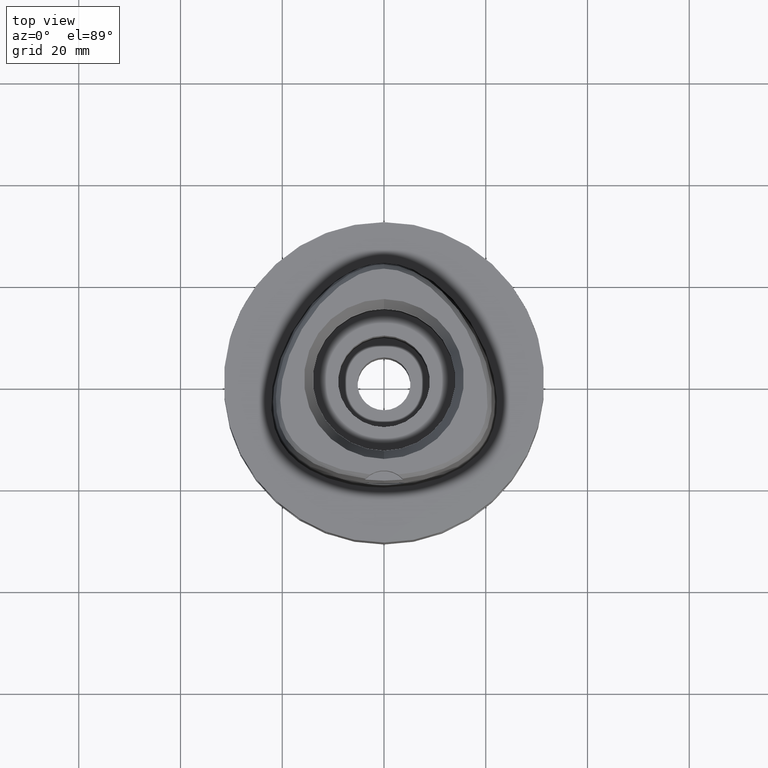
[diagram: clean part render]
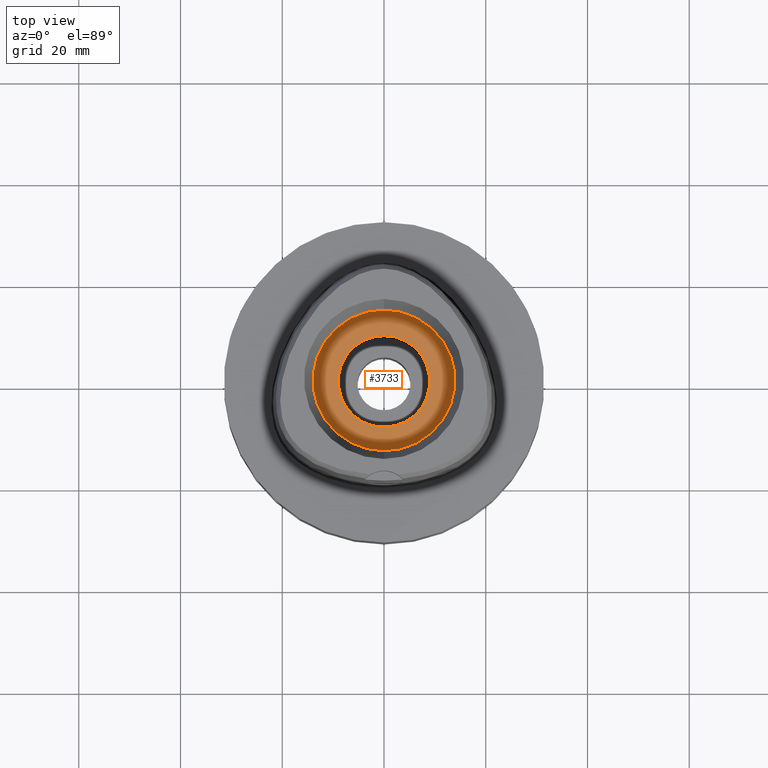
[diagram: same view with one face highlighted and labeled with its STEP entity id]
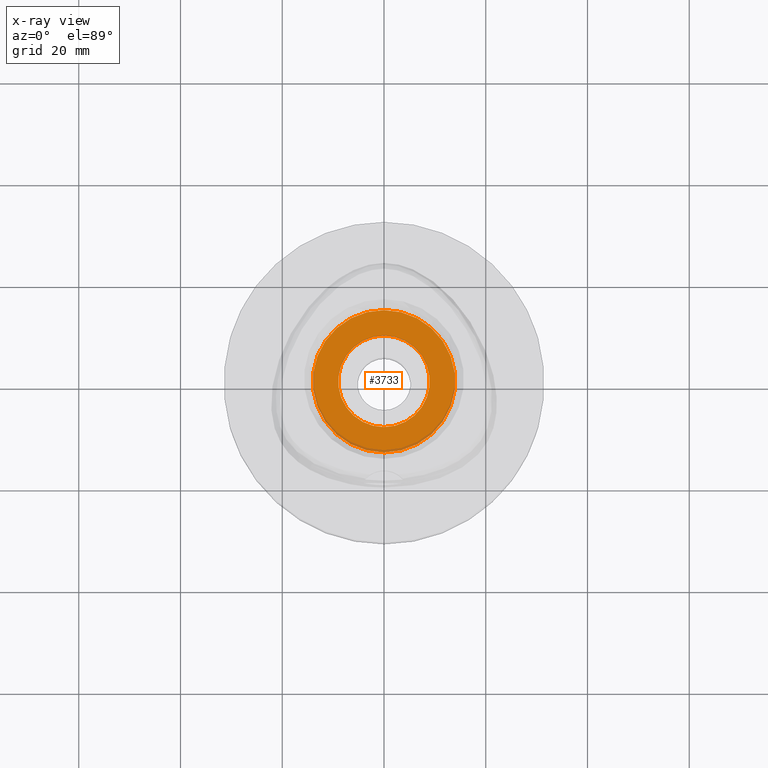
[diagram: x-ray of the same camera — body ghosted, the highlighted face saturated]
A machine part, top view. The second image highlights one B-rep face of the part: STEP entity #3733.
The next image is the same camera in x-ray: the body ghosted, the highlighted face saturated — about 3% of this face is hidden behind the body in this view.
In plain terms, the highlighted planar face has unit normal (0, 0, -1).
Its self-contained STEP definition (entity closure, byte-faithful):
#93 = DIRECTION ( 'NONE',  ( 0.0000000000000000000, -1.000000000000000000, 0.0000000000000000000 ) ) ;
#352 = EDGE_LOOP ( 'NONE', ( #1647, #4288 ) ) ;
#410 = FACE_OUTER_BOUND ( 'NONE', #352, .T. ) ;
#517 = CARTESIAN_POINT ( 'NONE',  ( 0.0000000000000000000, -14.00000000000000000, 11.00000000000000000 ) ) ;
#562 = CIRCLE ( 'NONE', #1677, 9.000000000000000000 ) ;
#617 = CARTESIAN_POINT ( 'NONE',  ( 0.0000000000000000000, 0.0000000000000000000, 11.00000000000000000 ) ) ;
#679 = EDGE_CURVE ( 'NONE', #2454, #3894, #562, .T. ) ;
#709 = DIRECTION ( 'NONE',  ( 0.0000000000000000000, 1.000000000000000000, 0.0000000000000000000 ) ) ;
#813 = CIRCLE ( 'NONE', #1999, 14.00000000000000000 ) ;
#927 = ORIENTED_EDGE ( 'NONE', *, *, #1438, .F. ) ;
#951 = CARTESIAN_POINT ( 'NONE',  ( 0.0000000000000000000, 0.0000000000000000000, 11.00000000000000000 ) ) ;
#1173 = DIRECTION ( 'NONE',  ( 0.0000000000000000000, -1.000000000000000000, 0.0000000000000000000 ) ) ;
#1345 = CARTESIAN_POINT ( 'NONE',  ( 0.0000000000000000000, 14.00000000000000000, 11.00000000000000000 ) ) ;
#1384 = DIRECTION ( 'NONE',  ( 0.0000000000000000000, 0.0000000000000000000, 1.000000000000000000 ) ) ;
#1431 = CIRCLE ( 'NONE', #2071, 14.00000000000000000 ) ;
#1438 = EDGE_CURVE ( 'NONE', #3894, #2454, #3669, .T. ) ;
#1461 = DIRECTION ( 'NONE',  ( 0.0000000000000000000, 1.000000000000000000, 0.0000000000000000000 ) ) ;
#1609 = PLANE ( 'NONE',  #1913 ) ;
#1647 = ORIENTED_EDGE ( 'NONE', *, *, #3451, .F. ) ;
#1677 = AXIS2_PLACEMENT_3D ( 'NONE', #4459, #3251, #1461 ) ;
#1913 = AXIS2_PLACEMENT_3D ( 'NONE', #1927, #2383, #93 ) ;
#1927 = CARTESIAN_POINT ( 'NONE',  ( 0.0000000000000000000, 0.0000000000000000000, 11.00000000000000000 ) ) ;
#1999 = AXIS2_PLACEMENT_3D ( 'NONE', #4030, #2251, #709 ) ;
#2071 = AXIS2_PLACEMENT_3D ( 'NONE', #951, #3729, #1173 ) ;
#2251 = DIRECTION ( 'NONE',  ( 0.0000000000000000000, 0.0000000000000000000, -1.000000000000000000 ) ) ;
#2383 = DIRECTION ( 'NONE',  ( 0.0000000000000000000, 0.0000000000000000000, -1.000000000000000000 ) ) ;
#2454 = VERTEX_POINT ( 'NONE', #3327 ) ;
#2606 = VERTEX_POINT ( 'NONE', #1345 ) ;
#2630 = AXIS2_PLACEMENT_3D ( 'NONE', #617, #1384, #2882 ) ;
#2882 = DIRECTION ( 'NONE',  ( 0.0000000000000000000, -1.000000000000000000, 0.0000000000000000000 ) ) ;
#2925 = CARTESIAN_POINT ( 'NONE',  ( 0.0000000000000000000, -9.000000000000000000, 11.00000000000000000 ) ) ;
#3069 = FACE_BOUND ( 'NONE', #4493, .T. ) ;
#3251 = DIRECTION ( 'NONE',  ( 0.0000000000000000000, 0.0000000000000000000, 1.000000000000000000 ) ) ;
#3327 = CARTESIAN_POINT ( 'NONE',  ( 0.0000000000000000000, 9.000000000000000000, 11.00000000000000000 ) ) ;
#3451 = EDGE_CURVE ( 'NONE', #3805, #2606, #1431, .T. ) ;
#3669 = CIRCLE ( 'NONE', #2630, 9.000000000000000000 ) ;
#3729 = DIRECTION ( 'NONE',  ( 0.0000000000000000000, 0.0000000000000000000, -1.000000000000000000 ) ) ;
#3733 = ADVANCED_FACE ( 'NONE', ( #410, #3069 ), #1609, .F. ) ;
#3805 = VERTEX_POINT ( 'NONE', #517 ) ;
#3894 = VERTEX_POINT ( 'NONE', #2925 ) ;
#3938 = EDGE_CURVE ( 'NONE', #2606, #3805, #813, .T. ) ;
#4030 = CARTESIAN_POINT ( 'NONE',  ( 0.0000000000000000000, 0.0000000000000000000, 11.00000000000000000 ) ) ;
#4197 = ORIENTED_EDGE ( 'NONE', *, *, #679, .F. ) ;
#4288 = ORIENTED_EDGE ( 'NONE', *, *, #3938, .F. ) ;
#4459 = CARTESIAN_POINT ( 'NONE',  ( 0.0000000000000000000, 0.0000000000000000000, 11.00000000000000000 ) ) ;
#4493 = EDGE_LOOP ( 'NONE', ( #927, #4197 ) ) ;